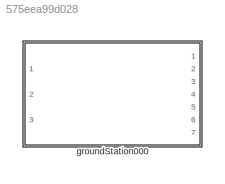
MODEL slx_575eea99d028
KIND library
CONFIG AbsTol = auto
CONFIG EnableMultiTasking = off
CONFIG FixedStep = auto
CONFIG MaxStep = auto
CONFIG MinStep = auto
CONFIG RelTol = 1e-3
CONFIG SampleTimeConstraint = Unconstrained
CONFIG Solver = VariableStepAuto
CONFIG SolverName = VariableStepAuto
CONFIG StartTime = 0.0
CONFIG StopTime = 10.0
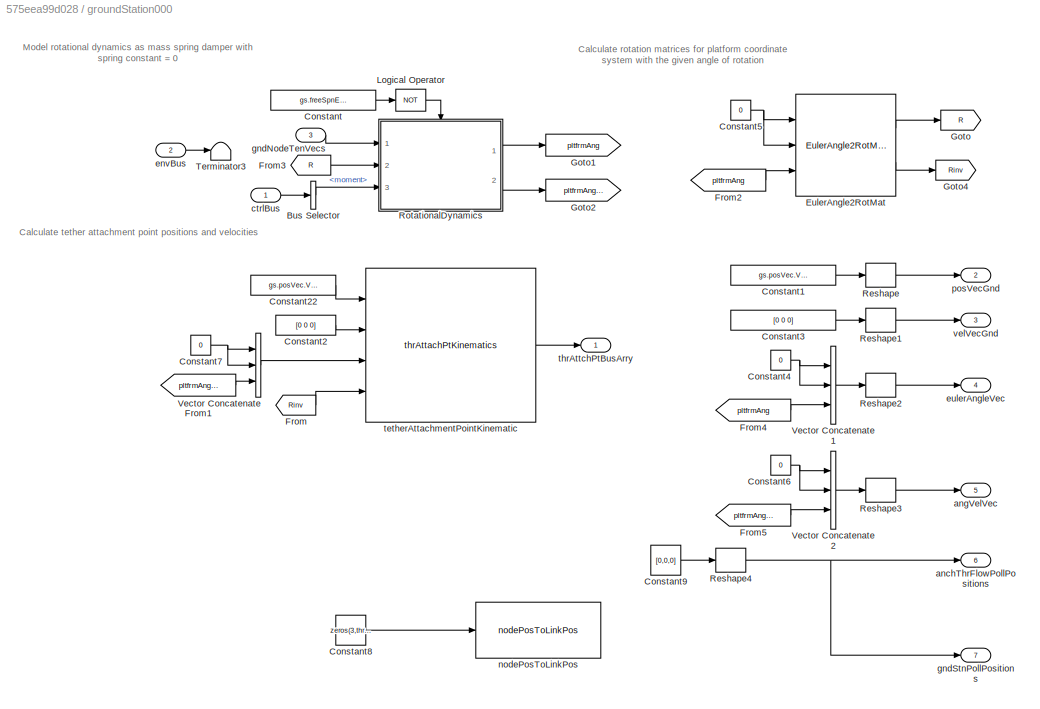
BLOCK [SubSystem] groundStation000
  Ports = [3, 7]
  RequestExecContextInheritance = off
BLOCK [BusSelector] groundStation000/Bus Selector
  OutputAsBus = off
  OutputSignals = moment
  Ports = [1, 1]
BLOCK [Constant] groundStation000/Constant
  Value = gs.freeSpnEnbl.Value
BLOCK [Constant] groundStation000/Constant1
  Value = gs.posVec.Value
BLOCK [Constant] groundStation000/Constant2
  Value = [0 0 0]
BLOCK [Constant] groundStation000/Constant22
  Value = gs.posVec.Value
BLOCK [Constant] groundStation000/Constant3
  Value = [0 0 0]
BLOCK [Constant] groundStation000/Constant4
  Value = 0
BLOCK [Constant] groundStation000/Constant5
  Value = 0
BLOCK [Constant] groundStation000/Constant6
  Value = 0
BLOCK [Constant] groundStation000/Constant7
  Value = 0
BLOCK [Constant] groundStation000/Constant8
  Commented = on
  Value = zeros(3,thr.numNodes.Value)
BLOCK [Constant] groundStation000/Constant9
  Value = [0,0,0]
BLOCK [Reference] groundStation000/EulerAngle2RotMat  REF=eulAng2RotMat_ul/EulerAngle2RotMat
  Ports = [3, 2]
  SourceBlock = eulAng2RotMat_ul/EulerAngle2RotMat
  SourceType = SubSystem
BLOCK [From] groundStation000/From
  GotoTag = Rinv
BLOCK [From] groundStation000/From1
  GotoTag = pltfrmAngSpd
BLOCK [From] groundStation000/From2
  GotoTag = pltfrmAng
BLOCK [From] groundStation000/From3
  GotoTag = R
BLOCK [From] groundStation000/From4
  GotoTag = pltfrmAng
BLOCK [From] groundStation000/From5
  GotoTag = pltfrmAngSpd
BLOCK [Goto] groundStation000/Goto
  GotoTag = R
BLOCK [Goto] groundStation000/Goto1
  GotoTag = pltfrmAng
BLOCK [Goto] groundStation000/Goto2
  GotoTag = pltfrmAngSpd
BLOCK [Goto] groundStation000/Goto4
  GotoTag = Rinv
BLOCK [Logic] groundStation000/Logical Operator
  AllPortsSameDT = off
  Operator = NOT
  OutDataTypeStr = boolean
  Ports = [1, 1]
BLOCK [Reshape] groundStation000/Reshape
  OutputDimensionality = Column vector (2-D)
  Ports = [1, 1]
BLOCK [Reshape] groundStation000/Reshape1
  OutputDimensionality = Column vector (2-D)
  Ports = [1, 1]
BLOCK [Reshape] groundStation000/Reshape2
  OutputDimensionality = Column vector (2-D)
  Ports = [1, 1]
BLOCK [Reshape] groundStation000/Reshape3
  OutputDimensionality = Column vector (2-D)
  Ports = [1, 1]
BLOCK [Reshape] groundStation000/Reshape4
  OutputDimensionality = Column vector (2-D)
  Ports = [1, 1]
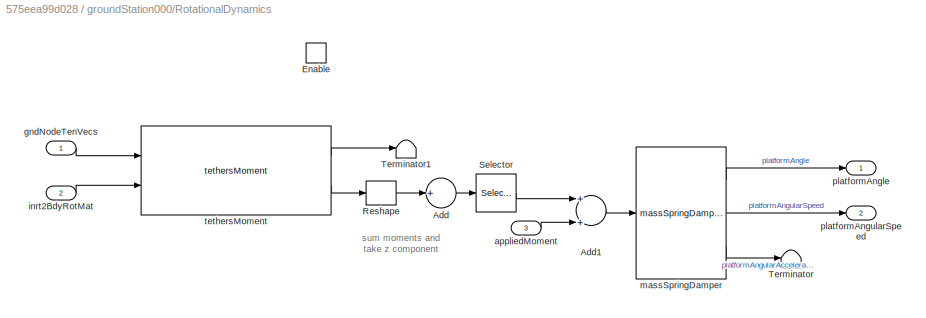
BLOCK [SubSystem] groundStation000/RotationalDynamics
  MinAlgLoopOccurrences = on
  Ports = [3, 2, 1]
  RequestExecContextInheritance = off
BLOCK [Sum] groundStation000/RotationalDynamics/Add
  CollapseDim = 2
  CollapseMode = Specified dimension
  InputSameDT = off
  Inputs = +
  OutDataTypeStr = Inherit: Inherit via internal rule
  Ports = [1, 1]
  SaturateOnIntegerOverflow = off
BLOCK [Sum] groundStation000/RotationalDynamics/Add1
  InputSameDT = off
  OutDataTypeStr = Inherit: Inherit via internal rule
  Ports = [2, 1]
  SaturateOnIntegerOverflow = off
BLOCK [EnablePort] groundStation000/RotationalDynamics/Enable
  Ports = []
BLOCK [Reshape] groundStation000/RotationalDynamics/Reshape
  OutputDimensionality = Customize
  OutputDimensions = [3 gs.numTethers.Value]
  Ports = [1, 1]
BLOCK [Selector] groundStation000/RotationalDynamics/Selector
  IndexOptions = Index vector (dialog)
  Indices = 3
  InputPortWidth = 3
  OutputSizes = 1
  Ports = [1, 1]
BLOCK [Terminator] groundStation000/RotationalDynamics/Terminator
BLOCK [Terminator] groundStation000/RotationalDynamics/Terminator1
BLOCK [Inport] groundStation000/RotationalDynamics/appliedMoment
  IconDisplay = Port number
  Port = 3
BLOCK [Inport] groundStation000/RotationalDynamics/gndNodeTenVecs
  IconDisplay = Port number
BLOCK [Inport] groundStation000/RotationalDynamics/inrt2BdyRotMat
  IconDisplay = Port number
  Port = 2
BLOCK [Reference] groundStation000/RotationalDynamics/massSpringDamper  REF=massSpringDamper_ul/massSpringDamper
  Ports = [1, 3]
  SourceBlock = massSpringDamper_ul/massSpringDamper
BLOCK [Outport] groundStation000/RotationalDynamics/platformAngle
  IconDisplay = Port number
  InitialOutput = gs.initAngPos.Value
BLOCK [Outport] groundStation000/RotationalDynamics/platformAngularSpeed
  IconDisplay = Port number
  InitialOutput = gs.initAngVel.Value
  Port = 2
BLOCK [Reference] groundStation000/RotationalDynamics/tethersMoment  REF=tethersMoment_cl/tethersMoment
  Ports = [2, 2]
  SourceBlock = tethersMoment_cl/tethersMoment
BLOCK [Terminator] groundStation000/Terminator3
BLOCK [Concatenate] groundStation000/Vector Concatenate
  NumInputs = 3
  Ports = [3, 1]
BLOCK [Concatenate] groundStation000/Vector Concatenate1
  NumInputs = 3
  Ports = [3, 1]
BLOCK [Concatenate] groundStation000/Vector Concatenate2
  NumInputs = 3
  Ports = [3, 1]
BLOCK [Outport] groundStation000/anchThrFlowPollPositions
  IconDisplay = Port number
  Port = 6
BLOCK [Outport] groundStation000/angVelVec
  IconDisplay = Port number
  Port = 5
BLOCK [Inport] groundStation000/ctrlBus
  IconDisplay = Port number
  OutDataTypeStr = Bus: gndStnCtrlBus
BLOCK [Inport] groundStation000/envBus
  IconDisplay = Port number
  OutDataTypeStr = Bus: envBus
  Port = 2
BLOCK [Outport] groundStation000/eulerAngleVec
  IconDisplay = Port number
  Port = 4
BLOCK [Inport] groundStation000/gndNodeTenVecs
  IconDisplay = Port number
  Port = 3
BLOCK [Outport] groundStation000/gndStnPollPositions
  IconDisplay = Port number
  Port = 7
BLOCK [Reference] groundStation000/nodePosToLinkPos  REF=nodePosToLinkPos_ul/nodePosToLinkPos
  Commented = on
  Ports = [1, 1]
  SourceBlock = nodePosToLinkPos_ul/nodePosToLinkPos
  SourceType = SubSystem
BLOCK [Outport] groundStation000/posVecGnd
  IconDisplay = Port number
  Port = 2
BLOCK [Reference] groundStation000/tetherAttachmentPointKinematic  REF=thrAttachPtKinematics_ul/thrAttachPtKinematics
  Ports = [4, 1]
  SourceBlock = thrAttachPtKinematics_ul/thrAttachPtKinematics
BLOCK [Outport] groundStation000/thrAttchPtBusArry
  IconDisplay = Port number
BLOCK [Outport] groundStation000/velVecGnd
  IconDisplay = Port number
  Port = 3
ANNOTATION groundStation000: Calculate rotation matrices for platform coordinate system with the given angle of rotation
ANNOTATION groundStation000: Calculate tether attachment point positions and velocities
ANNOTATION groundStation000: Model rotational dynamics as mass spring damper with spring constant = 0
ANNOTATION groundStation000/RotationalDynamics: sum moments and take z component
LINE groundStation000/Bus Selector:1 -> groundStation000/RotationalDynamics:3
LINE groundStation000/Constant1:1 -> groundStation000/Reshape:1
LINE groundStation000/Constant22:1 -> groundStation000/tetherAttachmentPointKinematic:1
LINE groundStation000/Constant2:1 -> groundStation000/tetherAttachmentPointKinematic:2
LINE groundStation000/Constant3:1 -> groundStation000/Reshape1:1
NET groundStation000/Constant4:1 -> groundStation000/Vector Concatenate1:1, groundStation000/Vector Concatenate1:2
NET groundStation000/Constant5:1 -> groundStation000/EulerAngle2RotMat:1, groundStation000/EulerAngle2RotMat:2
NET groundStation000/Constant6:1 -> groundStation000/Vector Concatenate2:1, groundStation000/Vector Concatenate2:2
NET groundStation000/Constant7:1 -> groundStation000/Vector Concatenate:1, groundStation000/Vector Concatenate:2
LINE groundStation000/Constant8:1 -> groundStation000/nodePosToLinkPos:1
LINE groundStation000/Constant9:1 -> groundStation000/Reshape4:1
LINE groundStation000/Constant:1 -> groundStation000/Logical Operator:1
LINE groundStation000/EulerAngle2RotMat:1 -> groundStation000/Goto:1
LINE groundStation000/EulerAngle2RotMat:2 -> groundStation000/Goto4:1
LINE groundStation000/From1:1 -> groundStation000/Vector Concatenate:3
LINE groundStation000/From2:1 -> groundStation000/EulerAngle2RotMat:3
LINE groundStation000/From3:1 -> groundStation000/RotationalDynamics:2
LINE groundStation000/From4:1 -> groundStation000/Vector Concatenate1:3
LINE groundStation000/From5:1 -> groundStation000/Vector Concatenate2:3
LINE groundStation000/From:1 -> groundStation000/tetherAttachmentPointKinematic:4
LINE groundStation000/Logical Operator:1 -> groundStation000/RotationalDynamics:enable
LINE groundStation000/Reshape1:1 -> groundStation000/velVecGnd:1
LINE groundStation000/Reshape2:1 -> groundStation000/eulerAngleVec:1
LINE groundStation000/Reshape3:1 -> groundStation000/angVelVec:1
NET groundStation000/Reshape4:1 -> groundStation000/anchThrFlowPollPositions:1, groundStation000/gndStnPollPositions:1
LINE groundStation000/Reshape:1 -> groundStation000/posVecGnd:1
LINE groundStation000/RotationalDynamics/Add1:1 -> groundStation000/RotationalDynamics/massSpringDamper:1
LINE groundStation000/RotationalDynamics/Add:1 -> groundStation000/RotationalDynamics/Selector:1
LINE groundStation000/RotationalDynamics/Reshape:1 -> groundStation000/RotationalDynamics/Add:1
LINE groundStation000/RotationalDynamics/Selector:1 -> groundStation000/RotationalDynamics/Add1:1
LINE groundStation000/RotationalDynamics/appliedMoment:1 -> groundStation000/RotationalDynamics/Add1:2
LINE groundStation000/RotationalDynamics/gndNodeTenVecs:1 -> groundStation000/RotationalDynamics/tethersMoment:1
LINE groundStation000/RotationalDynamics/inrt2BdyRotMat:1 -> groundStation000/RotationalDynamics/tethersMoment:2
LINE groundStation000/RotationalDynamics/massSpringDamper:1 -> groundStation000/RotationalDynamics/platformAngle:1
LINE groundStation000/RotationalDynamics/massSpringDamper:2 -> groundStation000/RotationalDynamics/platformAngularSpeed:1
LINE groundStation000/RotationalDynamics/massSpringDamper:3 -> groundStation000/RotationalDynamics/Terminator:1
LINE groundStation000/RotationalDynamics/tethersMoment:1 -> groundStation000/RotationalDynamics/Terminator1:1
LINE groundStation000/RotationalDynamics/tethersMoment:2 -> groundStation000/RotationalDynamics/Reshape:1
LINE groundStation000/RotationalDynamics:1 -> groundStation000/Goto1:1
LINE groundStation000/RotationalDynamics:2 -> groundStation000/Goto2:1
LINE groundStation000/Vector Concatenate1:1 -> groundStation000/Reshape2:1
LINE groundStation000/Vector Concatenate2:1 -> groundStation000/Reshape3:1
LINE groundStation000/Vector Concatenate:1 -> groundStation000/tetherAttachmentPointKinematic:3
LINE groundStation000/ctrlBus:1 -> groundStation000/Bus Selector:1
LINE groundStation000/envBus:1 -> groundStation000/Terminator3:1
LINE groundStation000/gndNodeTenVecs:1 -> groundStation000/RotationalDynamics:1
LINE groundStation000/tetherAttachmentPointKinematic:1 -> groundStation000/thrAttchPtBusArry:1
note: NET lines group one-source signal fan-out (src -> all destinations, sorted); 1:1 wires keep LINE
